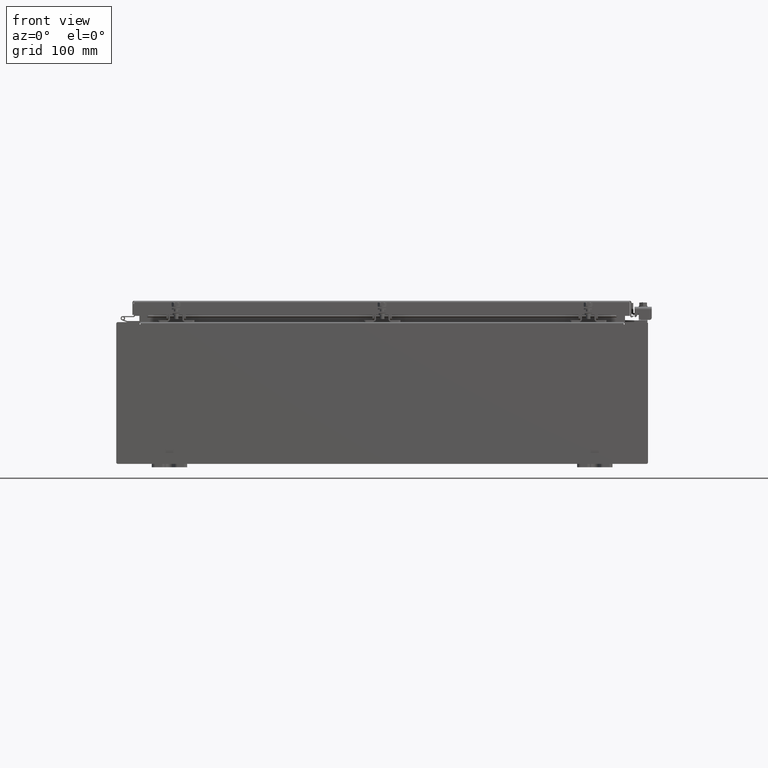
[diagram: clean part render]
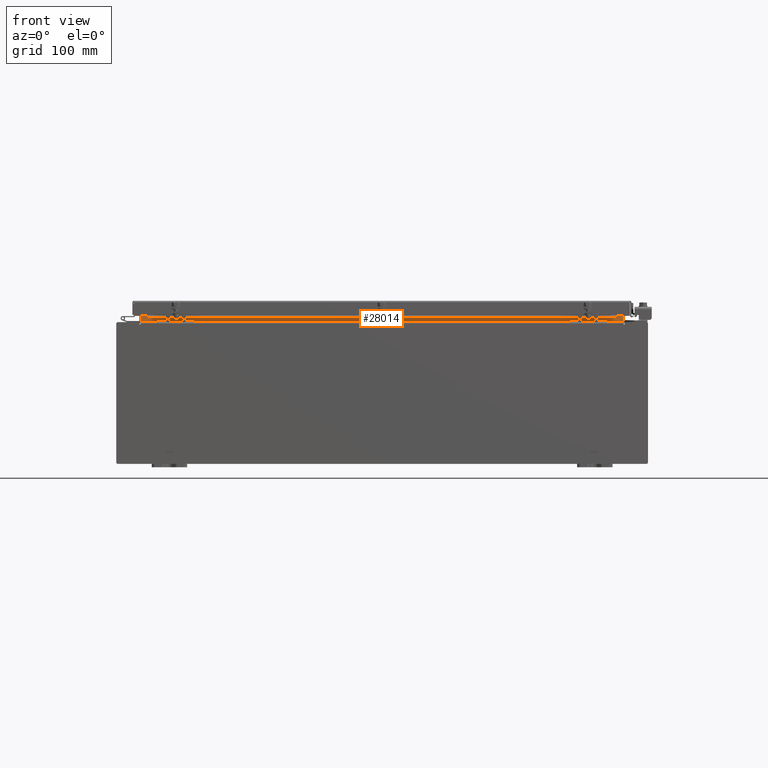
[diagram: same view with one face highlighted and labeled with its STEP entity id]
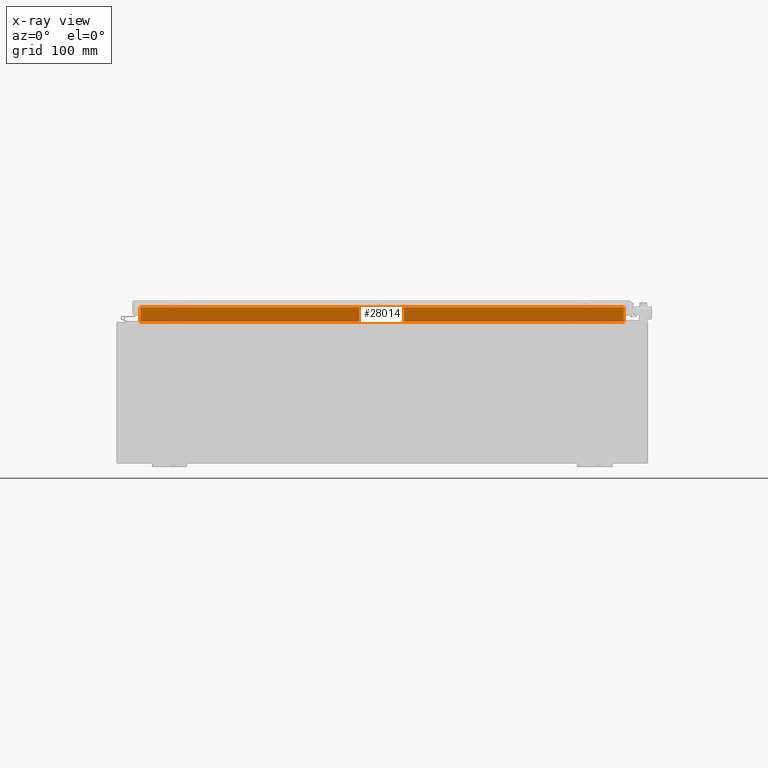
[diagram: x-ray of the same camera — body ghosted, the highlighted face saturated]
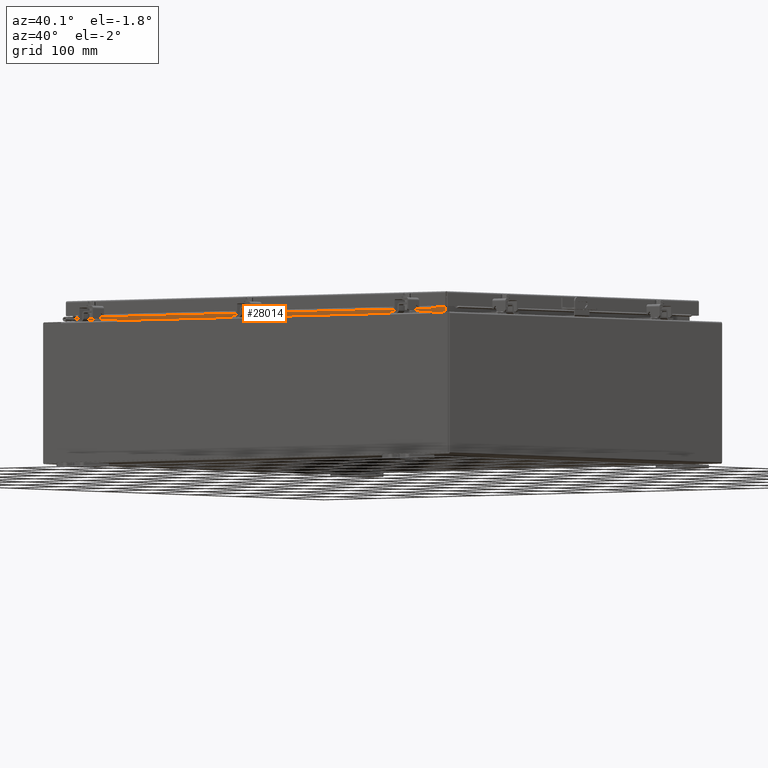
[diagram: same view with one face highlighted and labeled with its STEP entity id]
A machine part, front view. The second image highlights one B-rep face of the part: STEP entity #28014.
The next image is the same camera in x-ray: the body ghosted, the highlighted face saturated — about 0% of this face is hidden behind the body in this view.
A second angle (auxiliary view) of the same face is appended — the face is thin or edge-on in the first view.
In plain terms, the highlighted planar face has unit normal (0, -1, 0).
Its self-contained STEP definition (entity closure, byte-faithful):
#335 = CARTESIAN_POINT ( 'NONE',  ( -13.63719999999999800, -1.300299999999999800, 4.000000000000004400 ) ) ;
#666 = PLANE ( 'NONE',  #12645 ) ;
#1185 = EDGE_CURVE ( 'NONE', #8566, #18506, #27680, .T. ) ;
#1429 = LINE ( 'NONE', #335, #20690 ) ;
#1796 = CARTESIAN_POINT ( 'NONE',  ( -13.63719999999999800, -1.300299999999999800, 4.013000000000003500 ) ) ;
#3576 = VERTEX_POINT ( 'NONE', #4959 ) ;
#4633 = ORIENTED_EDGE ( 'NONE', *, *, #1185, .F. ) ;
#4959 = CARTESIAN_POINT ( 'NONE',  ( -13.63719999999999800, -1.300299999999999800, 4.013000000000003500 ) ) ;
#5695 = DIRECTION ( 'NONE',  ( 0.0000000000000000000, -0.0000000000000000000, 1.000000000000000000 ) ) ;
#7053 = EDGE_LOOP ( 'NONE', ( #15406, #15754, #4633, #7933 ) ) ;
#7933 = ORIENTED_EDGE ( 'NONE', *, *, #24849, .F. ) ;
#8566 = VERTEX_POINT ( 'NONE', #9033 ) ;
#9033 = CARTESIAN_POINT ( 'NONE',  ( 13.63720000000000000, -1.300299999999999800, 4.013000000000003500 ) ) ;
#9907 = LINE ( 'NONE', #27040, #20928 ) ;
#12645 = AXIS2_PLACEMENT_3D ( 'NONE', #18197, #20764, #5695 ) ;
#14217 = CARTESIAN_POINT ( 'NONE',  ( 13.63720000000000400, -1.300299999999999800, 4.925300000000004500 ) ) ;
#15406 = ORIENTED_EDGE ( 'NONE', *, *, #18273, .F. ) ;
#15754 = ORIENTED_EDGE ( 'NONE', *, *, #32331, .F. ) ;
#16807 = DIRECTION ( 'NONE',  ( 1.000000000000000000, 0.0000000000000000000, -2.003232330437526000E-017 ) ) ;
#18197 = CARTESIAN_POINT ( 'NONE',  ( 0.0000000000000000000, -1.300299999999999800, 0.0000000000000000000 ) ) ;
#18273 = EDGE_CURVE ( 'NONE', #30072, #3576, #1429, .T. ) ;
#18506 = VERTEX_POINT ( 'NONE', #21401 ) ;
#18589 = VECTOR ( 'NONE', #16807, 39.37007874015748100 ) ;
#20421 = DIRECTION ( 'NONE',  ( -0.0000000000000000000, -0.0000000000000000000, -1.000000000000000000 ) ) ;
#20690 = VECTOR ( 'NONE', #20421, 39.37007874015748100 ) ;
#20764 = DIRECTION ( 'NONE',  ( 0.0000000000000000000, 1.000000000000000000, 0.0000000000000000000 ) ) ;
#20928 = VECTOR ( 'NONE', #29538, 39.37007874015748100 ) ;
#21008 = VECTOR ( 'NONE', #21731, 39.37007874015748100 ) ;
#21401 = CARTESIAN_POINT ( 'NONE',  ( 13.63720000000000400, -1.300299999999999800, 4.837600000000003700 ) ) ;
#21731 = DIRECTION ( 'NONE',  ( -0.0000000000000000000, -0.0000000000000000000, 1.000000000000000000 ) ) ;
#23061 = CARTESIAN_POINT ( 'NONE',  ( -13.63719999999999800, -1.300299999999999300, 4.837600000000003700 ) ) ;
#24849 = EDGE_CURVE ( 'NONE', #3576, #8566, #31984, .T. ) ;
#25182 = FACE_OUTER_BOUND ( 'NONE', #7053, .T. ) ;
#27040 = CARTESIAN_POINT ( 'NONE',  ( 13.63720000000000400, -1.300299999999999300, 4.837600000000003700 ) ) ;
#27680 = LINE ( 'NONE', #14217, #21008 ) ;
#28014 = ADVANCED_FACE ( 'NONE', ( #25182 ), #666, .T. ) ;
#29538 = DIRECTION ( 'NONE',  ( -1.000000000000000000, -0.0000000000000000000, -0.0000000000000000000 ) ) ;
#30072 = VERTEX_POINT ( 'NONE', #23061 ) ;
#31984 = LINE ( 'NONE', #1796, #18589 ) ;
#32331 = EDGE_CURVE ( 'NONE', #18506, #30072, #9907, .T. ) ;